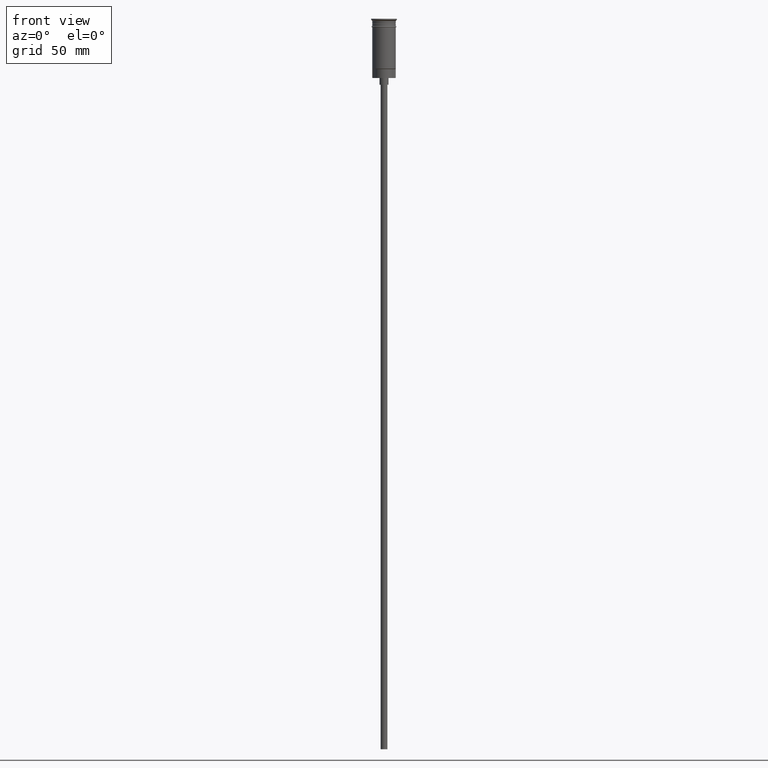
[diagram: clean part render]
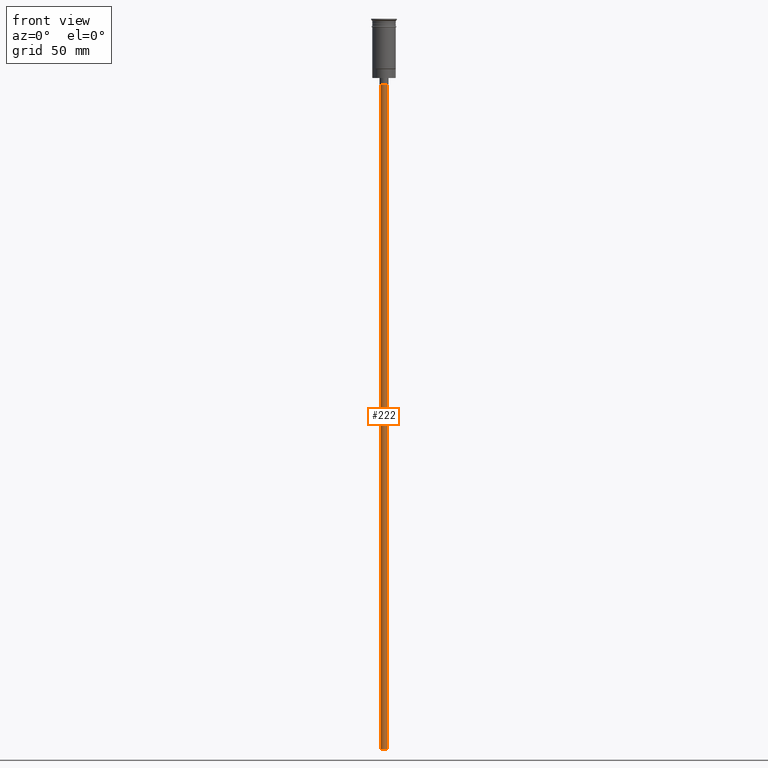
[diagram: same view with one face highlighted and labeled with its STEP entity id]
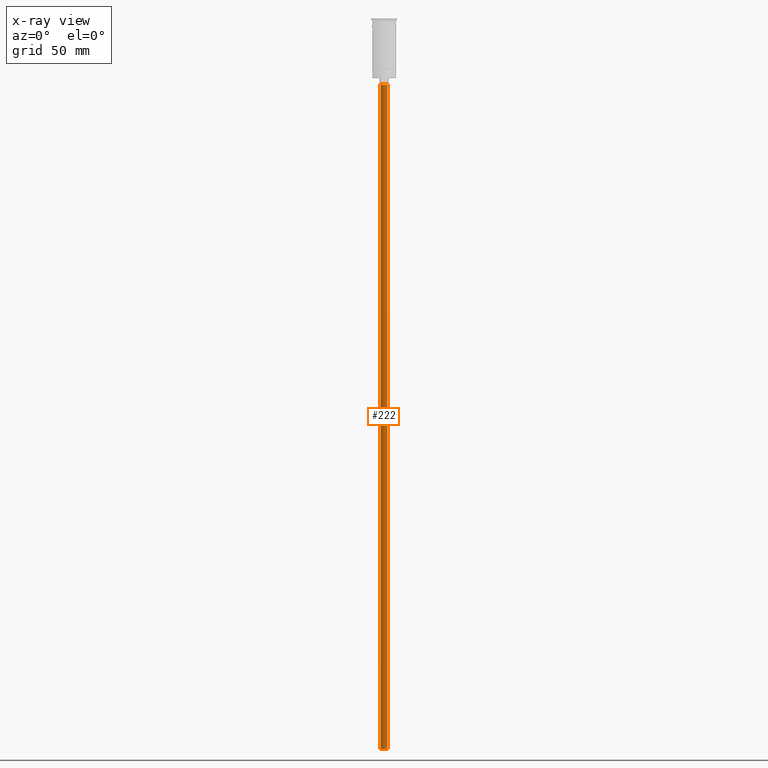
[diagram: x-ray of the same camera — body ghosted, the highlighted face saturated]
A machine part, front view. The second image highlights one B-rep face of the part: STEP entity #222.
The next image is the same camera in x-ray: the body ghosted, the highlighted face saturated — about 0% of this face is hidden behind the body in this view.
In plain terms, the highlighted cylindrical surface (edge-blend (fillet) strip) has radius 1.5 mm, axis along (-0, -0, 1).
Its self-contained STEP definition (entity closure, byte-faithful):
#10 = CIRCLE ( 'NONE', #908, 1.500000000000000222 ) ;
#45 = EDGE_CURVE ( 'NONE', #1181, #90, #966, .T. ) ;
#90 = VERTEX_POINT ( 'NONE', #1179 ) ;
#106 = VECTOR ( 'NONE', #1108, 1000.000000000000000 ) ;
#149 = CARTESIAN_POINT ( 'NONE',  ( 1.500000000000000222, 0.000000000000000000, -29.50000000000000000 ) ) ;
#179 = CARTESIAN_POINT ( 'NONE',  ( 0.000000000000000000, 0.000000000000000000, -326.5000000000000000 ) ) ;
#222 = ADVANCED_FACE ( 'NONE', ( #1602 ), #1341, .T. ) ;
#231 = EDGE_LOOP ( 'NONE', ( #1301, #849, #1524, #1337 ) ) ;
#252 = CARTESIAN_POINT ( 'NONE',  ( 0.000000000000000000, 0.000000000000000000, -326.5000000000000000 ) ) ;
#325 = DIRECTION ( 'NONE',  ( 0.000000000000000000, 0.000000000000000000, -1.000000000000000000 ) ) ;
#354 = DIRECTION ( 'NONE',  ( -0.000000000000000000, -0.000000000000000000, 1.000000000000000000 ) ) ;
#375 = DIRECTION ( 'NONE',  ( 1.000000000000000000, 0.000000000000000000, 0.000000000000000000 ) ) ;
#439 = VERTEX_POINT ( 'NONE', #149 ) ;
#449 = CARTESIAN_POINT ( 'NONE',  ( 0.000000000000000000, 0.000000000000000000, -29.50000000000000000 ) ) ;
#500 = AXIS2_PLACEMENT_3D ( 'NONE', #179, #668, #1426 ) ;
#521 = VERTEX_POINT ( 'NONE', #697 ) ;
#610 = CARTESIAN_POINT ( 'NONE',  ( -1.500000000000000222, 1.836970198721030181E-16, -326.5000000000000000 ) ) ;
#668 = DIRECTION ( 'NONE',  ( 0.000000000000000000, 0.000000000000000000, -1.000000000000000000 ) ) ;
#697 = CARTESIAN_POINT ( 'NONE',  ( 1.500000000000000222, 0.000000000000000000, -326.5000000000000000 ) ) ;
#738 = VECTOR ( 'NONE', #354, 1000.000000000000000 ) ;
#849 = ORIENTED_EDGE ( 'NONE', *, *, #1391, .F. ) ;
#859 = CARTESIAN_POINT ( 'NONE',  ( 1.500000000000000222, 0.000000000000000000, -326.5000000000000000 ) ) ;
#908 = AXIS2_PLACEMENT_3D ( 'NONE', #449, #325, #1095 ) ;
#966 = LINE ( 'NONE', #1487, #106 ) ;
#986 = DIRECTION ( 'NONE',  ( -0.000000000000000000, -0.000000000000000000, 1.000000000000000000 ) ) ;
#1014 = CIRCLE ( 'NONE', #500, 1.500000000000000222 ) ;
#1095 = DIRECTION ( 'NONE',  ( -1.000000000000000000, 0.000000000000000000, 0.000000000000000000 ) ) ;
#1108 = DIRECTION ( 'NONE',  ( -0.000000000000000000, -0.000000000000000000, 1.000000000000000000 ) ) ;
#1179 = CARTESIAN_POINT ( 'NONE',  ( -1.500000000000000222, 1.836970198721030181E-16, -29.50000000000000000 ) ) ;
#1181 = VERTEX_POINT ( 'NONE', #610 ) ;
#1301 = ORIENTED_EDGE ( 'NONE', *, *, #45, .F. ) ;
#1337 = ORIENTED_EDGE ( 'NONE', *, *, #1435, .T. ) ;
#1341 = CYLINDRICAL_SURFACE ( 'NONE', #1343, 1.500000000000000222 ) ;
#1343 = AXIS2_PLACEMENT_3D ( 'NONE', #252, #986, #375 ) ;
#1391 = EDGE_CURVE ( 'NONE', #521, #1181, #1014, .T. ) ;
#1426 = DIRECTION ( 'NONE',  ( -1.000000000000000000, 0.000000000000000000, 0.000000000000000000 ) ) ;
#1435 = EDGE_CURVE ( 'NONE', #439, #90, #10, .T. ) ;
#1463 = LINE ( 'NONE', #859, #738 ) ;
#1487 = CARTESIAN_POINT ( 'NONE',  ( -1.500000000000000222, 1.836970198721030181E-16, -326.5000000000000000 ) ) ;
#1510 = EDGE_CURVE ( 'NONE', #521, #439, #1463, .T. ) ;
#1524 = ORIENTED_EDGE ( 'NONE', *, *, #1510, .T. ) ;
#1602 = FACE_OUTER_BOUND ( 'NONE', #231, .T. ) ;